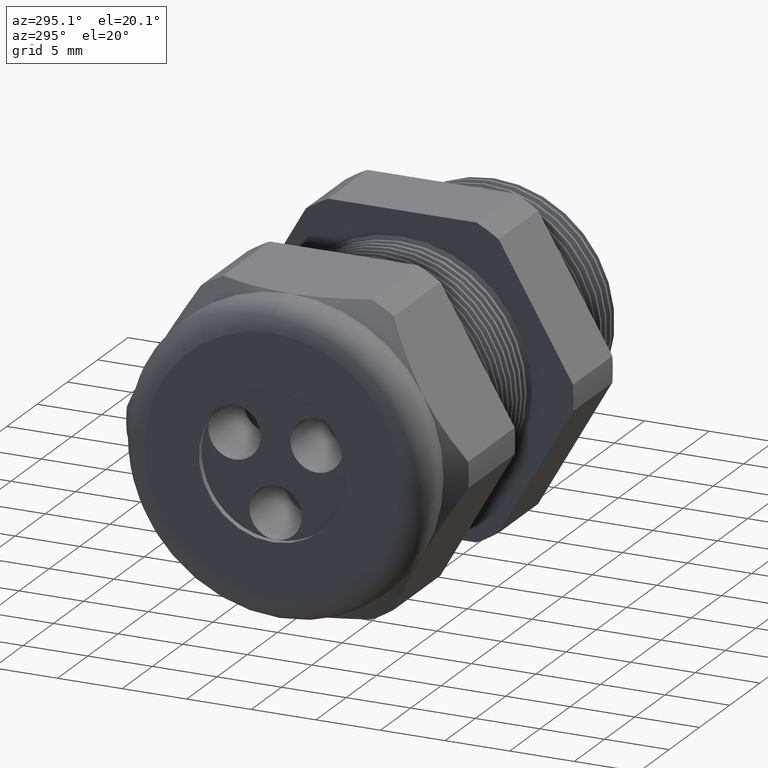
[diagram: clean part render]
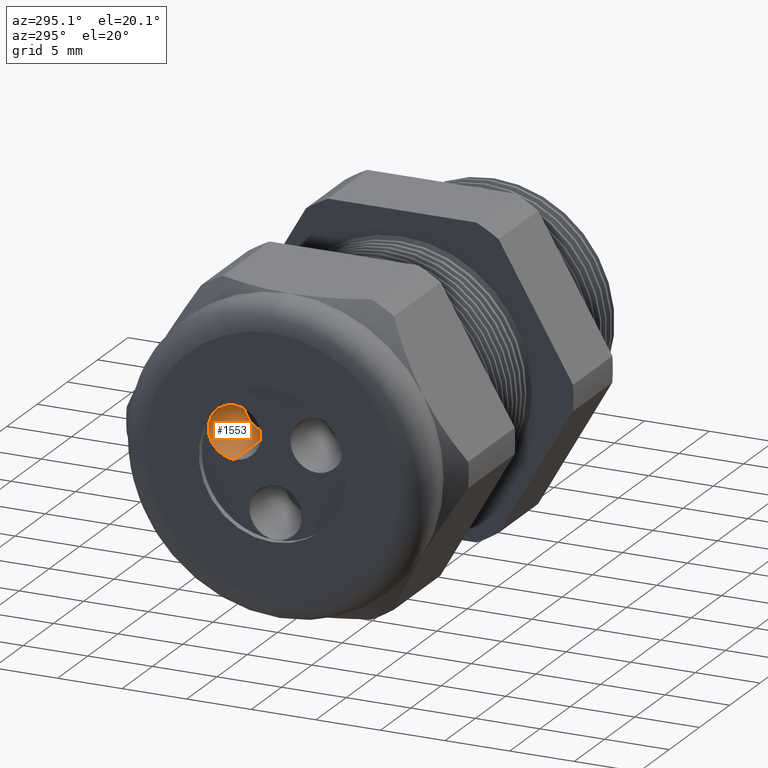
[diagram: same view with one face highlighted and labeled with its STEP entity id]
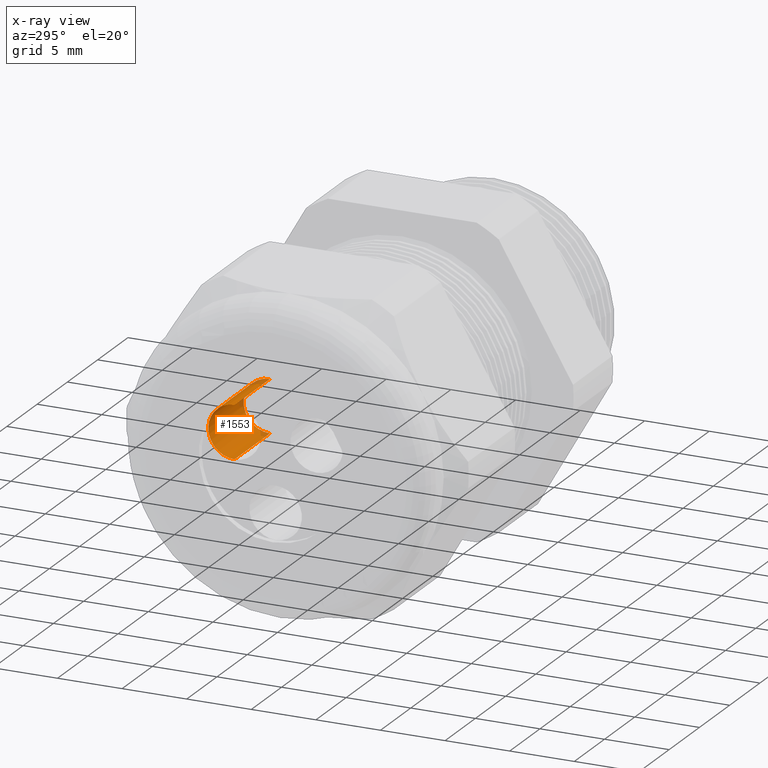
[diagram: x-ray of the same camera — body ghosted, the highlighted face saturated]
A machine part, auxiliary view. The second image highlights one B-rep face of the part: STEP entity #1553.
The next image is the same camera in x-ray: the body ghosted, the highlighted face saturated — about 6% of this face is hidden behind the body in this view.
In plain terms, the highlighted cylindrical surface (edge-blend (fillet) strip) has radius 2.032 mm, axis along (-1, 0, 0).
Its self-contained STEP definition (entity closure, byte-faithful):
#1524 = EDGE_CURVE ( 'NONE', #1752, #1751, #4445, .T. ) ;
#1553 = ADVANCED_FACE ( 'NONE', ( #4484 ), #4483, .F. ) ;
#1554 = EDGE_LOOP ( 'NONE', ( #1555, #1597, #1598, #1562 ) ) ;
#1555 = ORIENTED_EDGE ( 'NONE', *, *, #1750, .F. ) ;
#1562 = ORIENTED_EDGE ( 'NONE', *, *, #1524, .T. ) ;
#1597 = ORIENTED_EDGE ( 'NONE', *, *, #1691, .F. ) ;
#1598 = ORIENTED_EDGE ( 'NONE', *, *, #1650, .T. ) ;
#1650 = EDGE_CURVE ( 'NONE', #1748, #1752, #4682, .T. ) ;
#1691 = EDGE_CURVE ( 'NONE', #1748, #1701, #4731, .T. ) ;
#1701 = VERTEX_POINT ( 'NONE', #4774 ) ;
#1748 = VERTEX_POINT ( 'NONE', #4878 ) ;
#1750 = EDGE_CURVE ( 'NONE', #1701, #1751, #4877, .T. ) ;
#1751 = VERTEX_POINT ( 'NONE', #4873 ) ;
#1752 = VERTEX_POINT ( 'NONE', #4872 ) ;
#4441 = DIRECTION ( 'NONE',  ( 0.0000000000000000000, -0.8660254037844433700, -0.4999999999999920100 ) ) ;
#4442 = DIRECTION ( 'NONE',  ( -1.000000000000000000, 0.0000000000000000000, 0.0000000000000000000 ) ) ;
#4443 = CARTESIAN_POINT ( 'NONE',  ( -1.389999999999999900, 0.1252965554195332500, 0.07233999999999883600 ) ) ;
#4444 = AXIS2_PLACEMENT_3D ( 'NONE', #4443, #4442, #4441 ) ;
#4445 = CIRCLE ( 'NONE', #4444, 0.08000000000000000200 ) ;
#4478 = DIRECTION ( 'NONE',  ( 0.0000000000000000000, 0.0000000000000000000, 1.000000000000000000 ) ) ;
#4479 = DIRECTION ( 'NONE',  ( -1.000000000000000000, 0.0000000000000000000, 0.0000000000000000000 ) ) ;
#4480 = CARTESIAN_POINT ( 'NONE',  ( -1.159999999999999900, 0.1252965554195332500, 0.07233999999999883600 ) ) ;
#4481 = AXIS2_PLACEMENT_3D ( 'NONE', #4480, #4479, #4478 ) ;
#4483 = CYLINDRICAL_SURFACE ( 'NONE', #4481, 0.08000000000000000200 ) ;
#4484 = FACE_OUTER_BOUND ( 'NONE', #1554, .T. ) ;
#4679 = DIRECTION ( 'NONE',  ( -1.000000000000000000, 0.0000000000000000000, 0.0000000000000000000 ) ) ;
#4680 = VECTOR ( 'NONE', #4679, 39.37007874015748100 ) ;
#4681 = CARTESIAN_POINT ( 'NONE',  ( -1.159999999999999900, 0.1252965554195332500, 0.1523399999999988400 ) ) ;
#4682 = LINE ( 'NONE', #4681, #4680 ) ;
#4727 = DIRECTION ( 'NONE',  ( 0.0000000000000000000, -0.8660254037844433700, -0.4999999999999920100 ) ) ;
#4728 = DIRECTION ( 'NONE',  ( -1.000000000000000000, 0.0000000000000000000, 0.0000000000000000000 ) ) ;
#4729 = CARTESIAN_POINT ( 'NONE',  ( -1.159999999999999900, 0.1252965554195332500, 0.07233999999999883600 ) ) ;
#4730 = AXIS2_PLACEMENT_3D ( 'NONE', #4729, #4728, #4727 ) ;
#4731 = CIRCLE ( 'NONE', #4730, 0.08000000000000000200 ) ;
#4774 = CARTESIAN_POINT ( 'NONE',  ( -1.159999999999999900, 0.1252965554195332500, -0.007660000000001167600 ) ) ;
#4872 = CARTESIAN_POINT ( 'NONE',  ( -1.389999999999999900, 0.1252965554195332500, 0.1523399999999988400 ) ) ;
#4873 = CARTESIAN_POINT ( 'NONE',  ( -1.389999999999999900, 0.1252965554195332500, -0.007660000000001167600 ) ) ;
#4874 = DIRECTION ( 'NONE',  ( -1.000000000000000000, 0.0000000000000000000, 0.0000000000000000000 ) ) ;
#4875 = VECTOR ( 'NONE', #4874, 39.37007874015748100 ) ;
#4876 = CARTESIAN_POINT ( 'NONE',  ( -1.159999999999999900, 0.1252965554195332500, -0.007660000000001167600 ) ) ;
#4877 = LINE ( 'NONE', #4876, #4875 ) ;
#4878 = CARTESIAN_POINT ( 'NONE',  ( -1.159999999999999900, 0.1252965554195332500, 0.1523399999999988400 ) ) ;